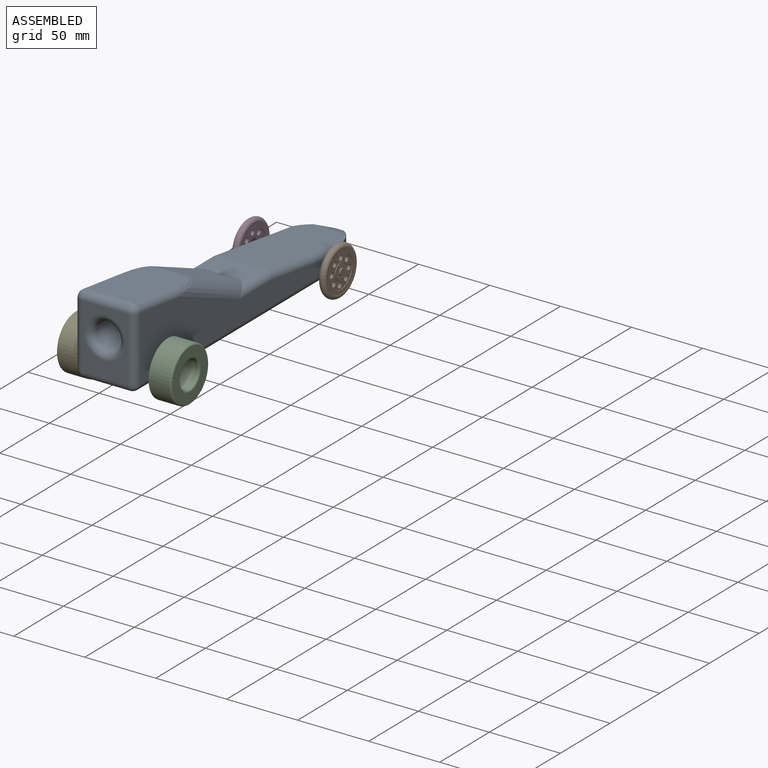
[diagram: assembled view]
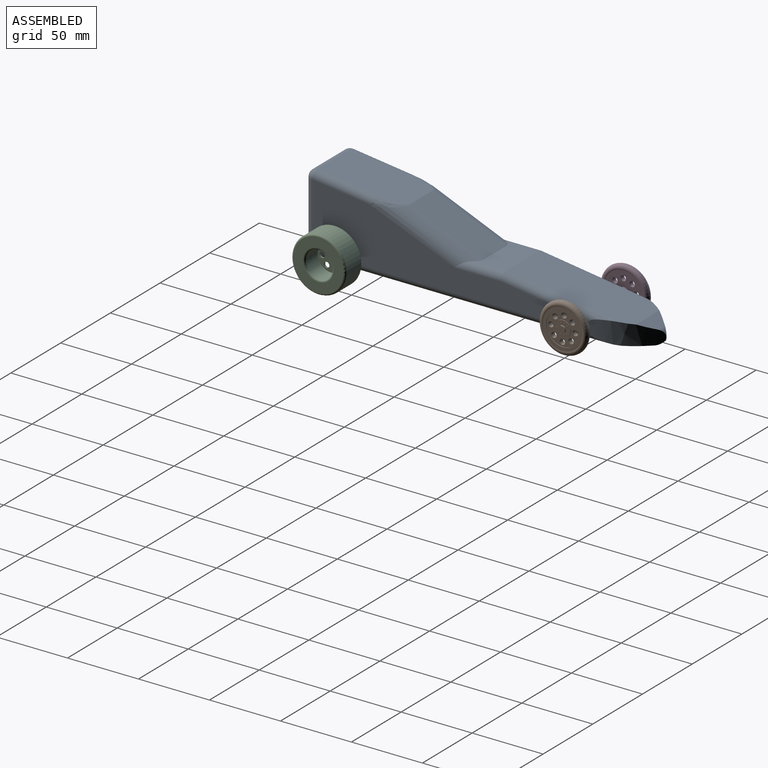
[diagram: assembled view, second angle]
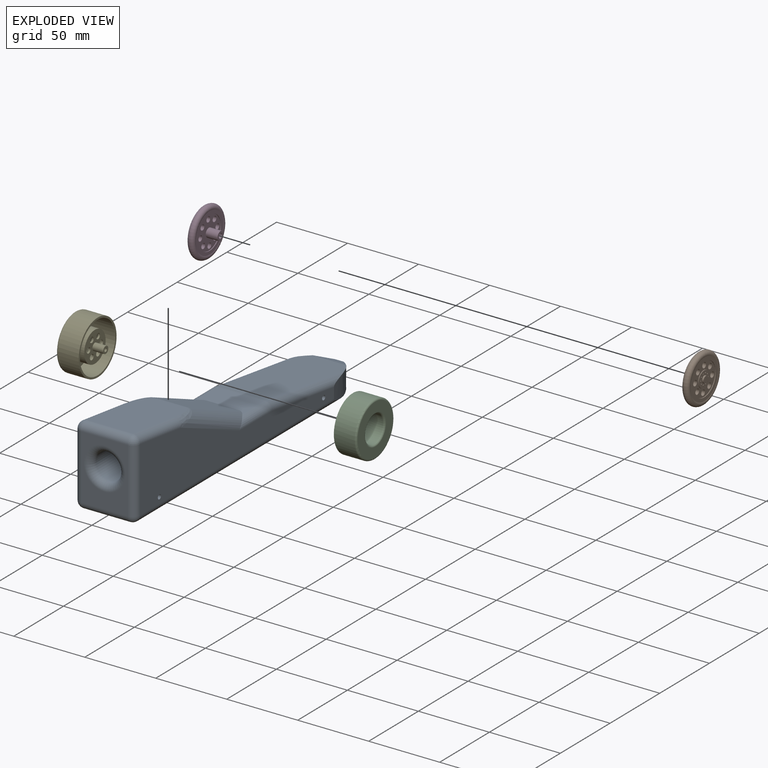
[diagram: exploded view]
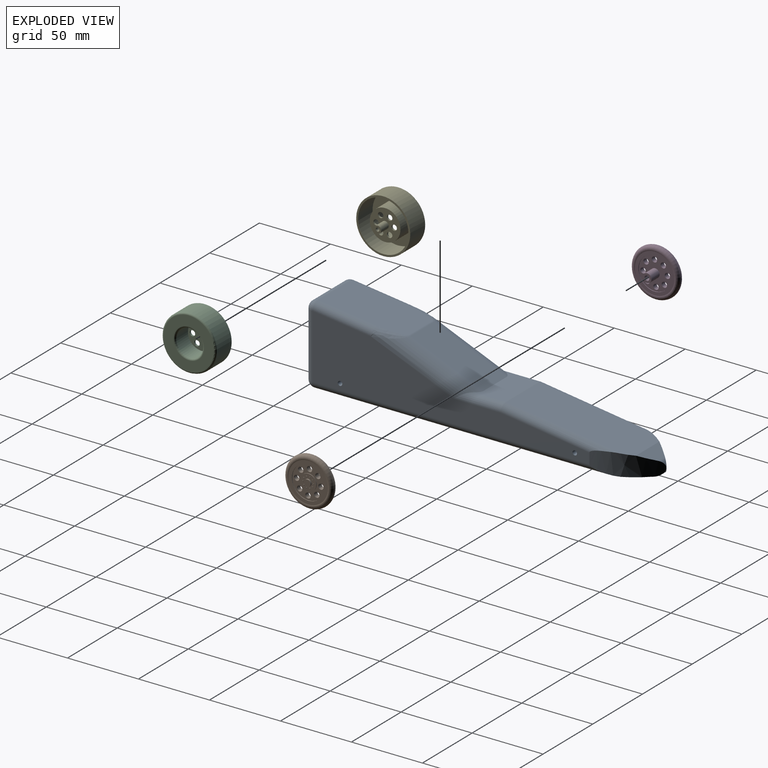
[diagram: exploded view, second angle]
ASSEMBLY  parts=5 mates=4
PART A: 44 faces, bbox 44.7x239.7x57.4 mm
  f0: plane 229.47x32.97mm, normal (0,0,-1), area 7341.4mm2, adj f4,f5,f23,f34,f42,f43
  f1: plane 23.8x10.15mm, normal (0,0.37,0.93), area 165.5mm2, adj f2,f5,f42,f43
  f2: plane 88.13x32.81mm, normal (0,0.14,0.99), area 2874.4mm2, adj f1,f3,f37,f40,f42,f43
  f3: cylinder r=5.08mm len=81.08mm, axis (0,-0.99,0.14), area 564.6mm2, adj f2,f9,f39,f42
  f4: cylinder r=5.08mm len=213.59mm, axis (0,1,0), area 1620.1mm2, adj f0,f9,f41,f42
  f5: cylinder r=5.08mm len=10.02mm, axis (1,0,0), area 45.9mm2, adj f0,f1,f42,f43
  f6: plane 7.86x5.3mm, normal (-1,0,0), area 30.2mm2, adj f34,f35,f37,f43
  f7: plane 60.52x32.7mm, normal (0,0.13,0.99), area 1953.3mm2, adj f17,f18,f19,f20,f29,f31
  f8: plane 45.5x32.7mm, normal (0,-1,0), area 817.9mm2, adj f18,f22,f23,f24,f26
  f9: plane 195.15x45.5mm, normal (1,0,0), area 4644.1mm2, adj f3,f4,f13,f14,f17,f22,f27,f28
  f10: plane 180.32x45.5mm, normal (-1,0,0), area 4399mm2, adj f20,f24,f30,f32,f34,f35,f36,f37
  f11: cylinder r=9.53mm len=45.72mm, axis (0,-1,0), area 2736.2mm2, adj f12,f26
  f12: plane 19.05x19.05mm, normal (0,-1,0), area 285mm2, adj f11
  f13: cylinder r=1.59mm len=37.78mm, axis (1,0,0), area 376.9mm2, adj f9,f35
  f14: cylinder r=1.59mm len=37.78mm, axis (1,0,0), area 376.9mm2, adj f9,f32
  f15: plane 32.7x22.37mm, normal (0,0,1), area 627.1mm2, adj f16,f27,f28,f30,f36,f40
  f16: plane 51.23x22.54mm, normal (0,0.38,0.92), area 1250.6mm2, adj f15,f19,f28,f30
  f17: cylinder r=5.08mm len=41.97mm, axis (0,-0.99,0.13), area 332.5mm2, adj f7,f9,f21,f29
  f18: cylinder r=5.08mm len=32.7mm, axis (-1,0,0), area 282.3mm2, adj f7,f8,f21,f25
  f19: cylinder r=5.08mm len=22.54mm, axis (1,0,0), area 30.4mm2, adj f7,f16,f29,f31
  f20: cylinder r=5.08mm len=41.97mm, axis (0,0.99,-0.13), area 332.5mm2, adj f7,f10,f25,f31
  f21: sphere r=5.08mm, area 43.8mm2, adj f17,f18,f22
  f22: cylinder r=5.08mm len=45.5mm, axis (0,0,1), area 363.1mm2, adj f8,f9,f21,f41
  f23: cylinder r=5.08mm len=32.7mm, axis (-1,0,0), area 261mm2, adj f0,f8,f33,f41
  f24: cylinder r=5.08mm len=45.5mm, axis (0,0,-1), area 363.1mm2, adj f8,f10,f25,f33
  f25: sphere r=5.08mm, area 43.8mm2, adj f18,f20,f24
  f26: torus R=14.61mm, axis (0,-1,0), area 570.1mm2, adj f8,f11
  f27: cylinder r=5.08mm len=33.07mm, axis (0,-1,0), area 221.2mm2, adj f9,f15,f28,f39
  f28: cylinder r=10.16mm len=72.37mm, axis (0,-0.92,0.38), area 905.3mm2, adj f9,f15,f16,f27,f29
  f29: bspline ~24.82x12.73mm, area 111.5mm2, adj f7,f17,f19,f28
  f30: cylinder r=10.16mm len=72.37mm, axis (0,0.92,-0.38), area 905.3mm2, adj f10,f15,f16,f31,f36
  f31: bspline ~24.82x10.97mm, area 111.5mm2, adj f7,f19,f20,f30
  f32: torus R=6.67mm, axis (1,0,0), area 164.2mm2, adj f10,f14,f34
  f33: sphere r=5.08mm, area 40.5mm2, adj f23,f24,f34
  f34: cylinder r=5.08mm len=213.59mm, axis (0,-1,0), area 1605.3mm2, adj f0,f6,f10,f32,f33,f35,f43
  f35: torus R=6.67mm, axis (1,0,0), area 154.7mm2, adj f6,f10,f13,f34,f37
  f36: cylinder r=5.08mm len=33.07mm, axis (0,1,0), area 221.2mm2, adj f10,f15,f30,f38
  f37: cylinder r=5.08mm len=81.08mm, axis (0,0.99,-0.14), area 555.9mm2, adj f2,f6,f10,f35,f38,f43
  f38: sphere r=5.08mm, area 3.6mm2, adj f36,f37,f40
  f39: sphere r=5.08mm, area 3.6mm2, adj f3,f27,f40
  f40: cylinder r=5.08mm len=32.7mm, axis (1,0,0), area 23.2mm2, adj f2,f15,f38,f39
  f41: sphere r=5.08mm, area 40.5mm2, adj f4,f22,f23
  f42: extruded ~39.26x21.27mm, area 569.2mm2, adj f0,f1,f2,f3,f4,f5,f9
  f43: extruded ~39.26x21.27mm, area 569.2mm2, adj f0,f1,f2,f5,f6,f34,f37
PART B: 43 faces, bbox 43.9x22.9x43.9 mm
  f0: revolved ~34.31x34.31mm, area 855.2mm2, adj f16,f18
  f1: plane 23.03x23.03mm, normal (0,-1,0), area 296.9mm2, adj f6,f7,f8,f9,f10,f11,f12,f13
  f2: plane 11.33x11.33mm, normal (0,1,0), area 76.5mm2, adj f3,f5,f19,f21,f23,f25,f27,f29
  f3: cylinder r=2.4mm len=4.8mm, axis (0,-1,0), area 16.7mm2, adj f2,f4
  f4: plane 4.8x4.8mm, normal (0,1,0), area 18.1mm2, adj f3
  f5: cylinder r=5.66mm len=11.33mm, axis (0,-1,0), area 18.1mm2, adj f2,f14
  f6: cylinder r=1.88mm len=3.76mm, axis (0,-1,0), area 40.9mm2, adj f1,f14
  f7: cylinder r=1.88mm len=3.76mm, axis (0,-1,0), area 40.9mm2, adj f1,f14
  f8: cylinder r=1.88mm len=3.76mm, axis (0,-1,0), area 40.9mm2, adj f1,f14
  f9: cylinder r=1.88mm len=3.76mm, axis (0,-1,0), area 40.9mm2, adj f1,f14
  f10: cylinder r=1.88mm len=3.76mm, axis (0,-1,0), area 40.9mm2, adj f1,f14
  f11: cylinder r=1.88mm len=3.76mm, axis (0,-1,0), area 40.9mm2, adj f1,f14
  f12: cylinder r=1.88mm len=3.76mm, axis (0,-1,0), area 40.9mm2, adj f1,f14
  f13: cylinder r=1.88mm len=3.76mm, axis (0,-1,0), area 40.9mm2, adj f1,f14
  f14: plane 23.03x23.03mm, normal (0,1,0), area 226.8mm2, adj f5,f6,f7,f8,f9,f10,f11,f12
  f15: cylinder r=11.51mm len=23.03mm, axis (0,1,0), area 36.7mm2, adj f1,f16
  f16: plane 37.43x37.43mm, normal (0,-1,0), area 193.5mm2, adj f0,f15
  f17: cylinder r=11.51mm len=23.03mm, axis (0,1,0), area 36.7mm2, adj f14,f18
  f18: plane 37.43x37.43mm, normal (0,1,0), area 193.5mm2, adj f0,f17
  f19: cylinder r=0.44mm len=0.89mm, axis (0,-1,0), area 1.1mm2, adj f2,f20
  f20: plane 0.89x0.89mm, normal (0,1,0), area 0.6mm2, adj f19
  f21: cylinder r=0.44mm len=0.89mm, axis (0,-1,0), area 1.1mm2, adj f2,f22
  f22: plane 0.89x0.89mm, normal (0,1,0), area 0.6mm2, adj f21
  f23: cylinder r=0.44mm len=0.89mm, axis (0,-1,0), area 1.1mm2, adj f2,f24
  f24: plane 0.89x0.89mm, normal (0,1,0), area 0.6mm2, adj f23
  f25: cylinder r=0.44mm len=0.89mm, axis (0,-1,0), area 1.1mm2, adj f2,f26
  f26: plane 0.89x0.89mm, normal (0,1,0), area 0.6mm2, adj f25
  f27: cylinder r=0.44mm len=0.89mm, axis (0,-1,0), area 1.1mm2, adj f2,f28
  f28: plane 0.89x0.89mm, normal (0,1,0), area 0.6mm2, adj f27
  f29: cylinder r=0.44mm len=0.89mm, axis (0,-1,0), area 1.1mm2, adj f2,f30
  f30: plane 0.89x0.89mm, normal (0,1,0), area 0.6mm2, adj f29
  f31: cylinder r=0.44mm len=0.89mm, axis (0,-1,0), area 1.1mm2, adj f2,f32
  f32: plane 0.89x0.89mm, normal (0,1,0), area 0.6mm2, adj f31
  f33: cylinder r=0.44mm len=0.89mm, axis (0,-1,0), area 1.1mm2, adj f2,f34
  f34: plane 0.89x0.89mm, normal (0,1,0), area 0.6mm2, adj f33
  f35: cylinder r=0.44mm len=0.89mm, axis (0,-1,0), area 1.1mm2, adj f2,f36
  f36: plane 0.89x0.89mm, normal (0,1,0), area 0.6mm2, adj f35
  f37: cylinder r=0.44mm len=0.89mm, axis (0,-1,0), area 1.1mm2, adj f2,f38
  f38: plane 0.89x0.89mm, normal (0,1,0), area 0.6mm2, adj f37
  f39: cylinder r=3.12mm len=8.26mm, axis (0,1,0), area 162mm2, adj f1,f40
  f40: plane 6.25x6.25mm, normal (0,-1,0), area 21.7mm2, adj f39,f41
  f41: cylinder r=1.69mm len=10.13mm, axis (0,-1,0), area 107.6mm2, adj f40,f42
  f42: plane 3.38x3.38mm, normal (0,-1,0), area 9mm2, adj f41
PART C: 20 faces, bbox 41.2x41.2x21.6 mm
  f0: cylinder r=19.05mm len=38.1mm, axis (0,0,1), area 1748.1mm2, adj f2,f19
  f1: plane 35.56x35.56mm, normal (0,0,-1), area 627.1mm2, adj f18,f19
  f2: plane 38.1x38.1mm, normal (0,0,1), area 146.9mm2, adj f0,f5
  f3: cylinder r=9.53mm len=19.05mm, axis (0,0,-1), area 684.1mm2, adj f4,f18
  f4: plane 19.05x19.05mm, normal (0,0,-1), area 211.6mm2, adj f3,f9,f10,f11,f12,f13,f14,f17
  f5: cylinder r=17.78mm len=35.56mm, axis (0,0,1), area 1631.6mm2, adj f2,f6
  f6: plane 35.56x35.56mm, normal (0,0,1), area 627.1mm2, adj f5,f7
  f7: cylinder r=10.79mm len=21.59mm, axis (0,0,-1), area 861.4mm2, adj f6,f8
  f8: plane 21.59x21.59mm, normal (0,0,1), area 277.4mm2, adj f7,f9,f10,f11,f12,f13,f14,f15
  f9: cylinder r=1.91mm len=3.81mm, axis (0,0,-1), area 15.2mm2, adj f4,f8
  f10: cylinder r=1.91mm len=3.81mm, axis (0,0,-1), area 15.2mm2, adj f4,f8
  f11: cylinder r=1.91mm len=3.81mm, axis (0,0,-1), area 15.2mm2, adj f4,f8
  f12: cylinder r=1.91mm len=3.81mm, axis (0,0,-1), area 15.2mm2, adj f4,f8
  f13: cylinder r=1.91mm len=3.81mm, axis (0,0,-1), area 15.2mm2, adj f4,f8
  f14: cylinder r=1.91mm len=3.81mm, axis (0,0,-1), area 15.2mm2, adj f4,f8
  f15: cylinder r=2.54mm len=7.62mm, axis (0,0,-1), area 121.6mm2, adj f8,f16
  f16: plane 5.08x5.08mm, normal (0,0,1), area 15.2mm2, adj f15,f17
  f17: cylinder r=1.27mm len=8.89mm, axis (0,0,1), area 70.9mm2, adj f4,f16
  f18: torus R=10.79mm, axis (0,0,-1), area 125.2mm2, adj f1,f3
  f19: torus R=17.78mm, axis (0,0,-1), area 233mm2, adj f0,f1
PART D: same geometry as B
PART E: same geometry as C
PLACE A t=(-45.12,8.11,16.31)mm
PLACE B rot(axis=(0.58,0.58,-0.58),120deg) t=(-15.44,60.18,-17.28)mm
PLACE C rot(axis=(0.71,0,-0.71),180deg) t=(-10.04,-119.68,29.63)mm
PLACE D rot(axis=(-0.58,0.58,0.58),120deg) t=(-73.32,31.16,-17.28)mm
PLACE E rot(axis=(0,1,0),90deg) t=(-75.13,-119.68,29.63)mm
MATE cylindrical C.f0 <-> A.f14  axis (-1,0,0) through (-23.69,-119.68,29.63)mm
MATE cylindrical E.f0 <-> A.f14  axis (1,0,0) through (-61.47,-119.68,29.63)mm
MATE cylindrical B.f3 <-> A.f13  axis (-1,0,0) through (-23.69,45.67,29.63)mm
MATE cylindrical D.f3 <-> A.f13  axis (1,0,0) through (-65.06,45.67,29.63)mm
